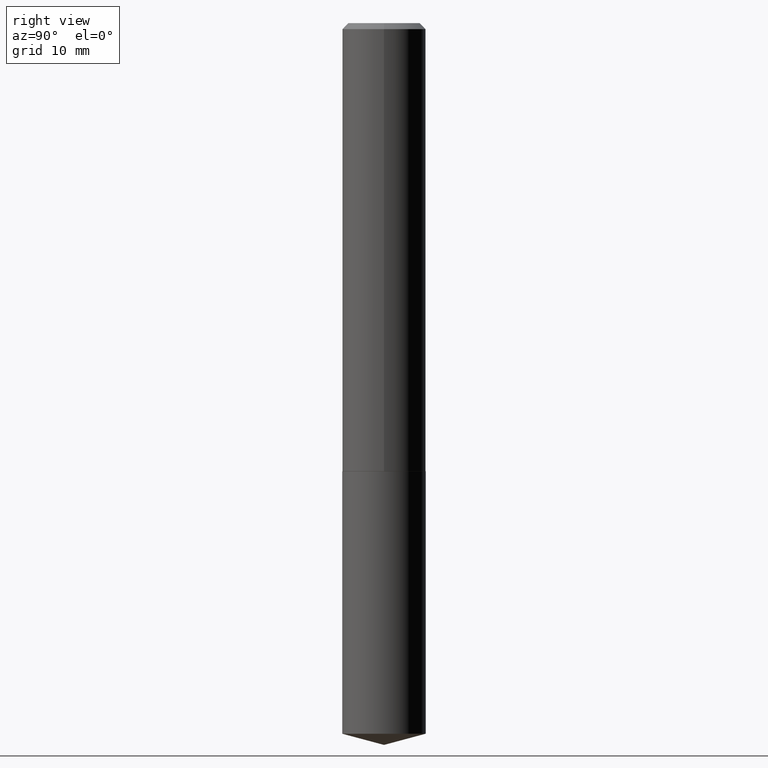
[diagram: clean part render]
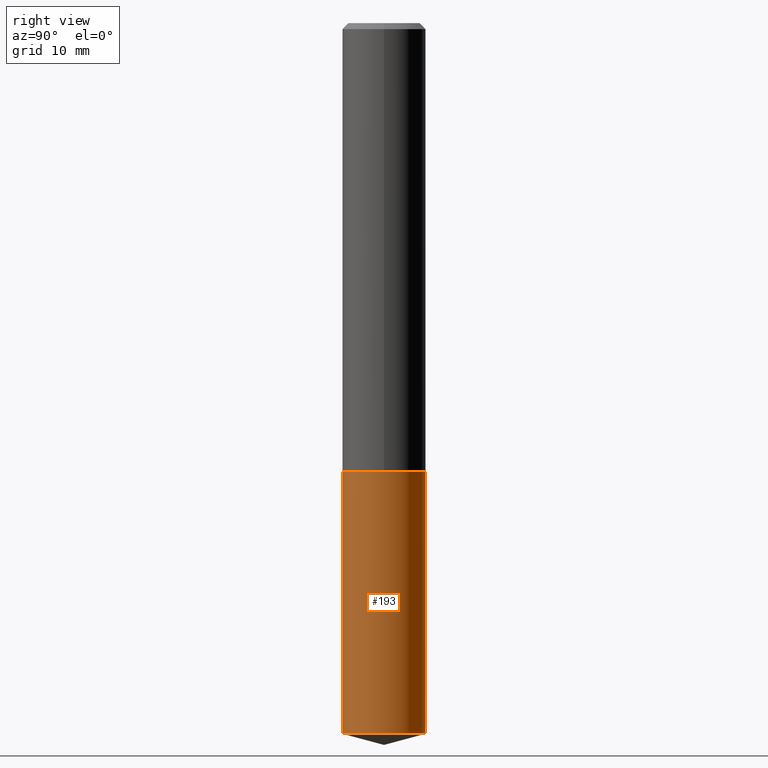
[diagram: same view with one face highlighted and labeled with its STEP entity id]
A machine part, right view. The second image highlights one B-rep face of the part: STEP entity #193.
In plain terms, the highlighted cylindrical surface (partial cylindrical patch) has radius 5.5004 mm, axis along (-0, 0, 1).
Its self-contained STEP definition (entity closure, byte-faithful):
#1 = ORIENTED_EDGE ( 'NONE', *, *, #212, .F. ) ;
#7 = CARTESIAN_POINT ( 'NONE',  ( -1.512160567852904222E-15, -0.2165500000000081249, -2.322899999999999299 ) ) ;
#11 = DIRECTION ( 'NONE',  ( -2.445528827278945188E-29, 3.491395385220622639E-15, 1.000000000000000000 ) ) ;
#19 = AXIS2_PLACEMENT_3D ( 'NONE', #340, #109, #287 ) ;
#44 = FACE_OUTER_BOUND ( 'NONE', #73, .T. ) ;
#73 = EDGE_LOOP ( 'NONE', ( #354, #260, #1, #321 ) ) ;
#82 = DIRECTION ( 'NONE',  ( -2.445528827278945188E-29, 3.491395385220622639E-15, 1.000000000000000000 ) ) ;
#93 = CARTESIAN_POINT ( 'NONE',  ( -1.512160567852904222E-15, -0.2165500000000081249, -2.322899999999999299 ) ) ;
#100 = CIRCLE ( 'NONE', #19, 0.2165500000000000203 ) ;
#104 = CARTESIAN_POINT ( 'NONE',  ( 5.680579489887453942E-29, -8.110362001998743924E-15, -2.322900000000000187 ) ) ;
#107 = LINE ( 'NONE', #343, #285 ) ;
#109 = DIRECTION ( 'NONE',  ( -2.445528827278945468E-29, 3.491395385220622639E-15, 1.000000000000000000 ) ) ;
#123 = CIRCLE ( 'NONE', #324, 0.2165500000000000203 ) ;
#125 = EDGE_CURVE ( 'NONE', #159, #176, #360, .T. ) ;
#127 = DIRECTION ( 'NONE',  ( -2.445528827278945468E-29, 3.491395385220622639E-15, 1.000000000000000000 ) ) ;
#129 = CARTESIAN_POINT ( 'NONE',  ( -1.512160567852871090E-15, -0.2165500000000128711, -3.682175602379041290 ) ) ;
#130 = VERTEX_POINT ( 'NONE', #249 ) ;
#133 = DIRECTION ( 'NONE',  ( -2.445528827278945468E-29, 3.491395385220622639E-15, 1.000000000000000000 ) ) ;
#152 = CYLINDRICAL_SURFACE ( 'NONE', #271, 0.2165500000000000203 ) ;
#159 = VERTEX_POINT ( 'NONE', #129 ) ;
#172 = VERTEX_POINT ( 'NONE', #224 ) ;
#176 = VERTEX_POINT ( 'NONE', #7 ) ;
#193 = ADVANCED_FACE ( 'NONE', ( #44 ), #152, .T. ) ;
#204 = DIRECTION ( 'NONE',  ( -6.982962677686265133E-15, -1.000000000000000000, 2.523064413451178124E-15 ) ) ;
#212 = EDGE_CURVE ( 'NONE', #176, #172, #100, .T. ) ;
#223 = EDGE_CURVE ( 'NONE', #130, #172, #107, .T. ) ;
#224 = CARTESIAN_POINT ( 'NONE',  ( 1.538680294288586829E-15, 0.2165499999999918879, -2.322900000000001075 ) ) ;
#230 = EDGE_CURVE ( 'NONE', #159, #130, #123, .T. ) ;
#249 = CARTESIAN_POINT ( 'NONE',  ( 1.538680294288587027E-15, 0.2165499999999871972, -3.682175602379042179 ) ) ;
#255 = DIRECTION ( 'NONE',  ( -6.982962677686265133E-15, -1.000000000000000000, 3.784596620176766988E-15 ) ) ;
#260 = ORIENTED_EDGE ( 'NONE', *, *, #223, .T. ) ;
#271 = AXIS2_PLACEMENT_3D ( 'NONE', #104, #127, #255 ) ;
#285 = VECTOR ( 'NONE', #82, 39.37007874015748143 ) ;
#287 = DIRECTION ( 'NONE',  ( -6.982962677686265133E-15, -1.000000000000000000, 3.784596620176766988E-15 ) ) ;
#316 = VECTOR ( 'NONE', #11, 39.37007874015748143 ) ;
#321 = ORIENTED_EDGE ( 'NONE', *, *, #125, .F. ) ;
#324 = AXIS2_PLACEMENT_3D ( 'NONE', #387, #133, #204 ) ;
#340 = CARTESIAN_POINT ( 'NONE',  ( 5.680579489887453942E-29, -8.110362001998743924E-15, -2.322900000000000187 ) ) ;
#343 = CARTESIAN_POINT ( 'NONE',  ( 1.538680294288553500E-15, 0.2165499999999918879, -2.322900000000001075 ) ) ;
#354 = ORIENTED_EDGE ( 'NONE', *, *, #230, .T. ) ;
#360 = LINE ( 'NONE', #93, #316 ) ;
#387 = CARTESIAN_POINT ( 'NONE',  ( 9.004727159722352583E-29, -1.285613056738791037E-14, -3.682175602379041734 ) ) ;